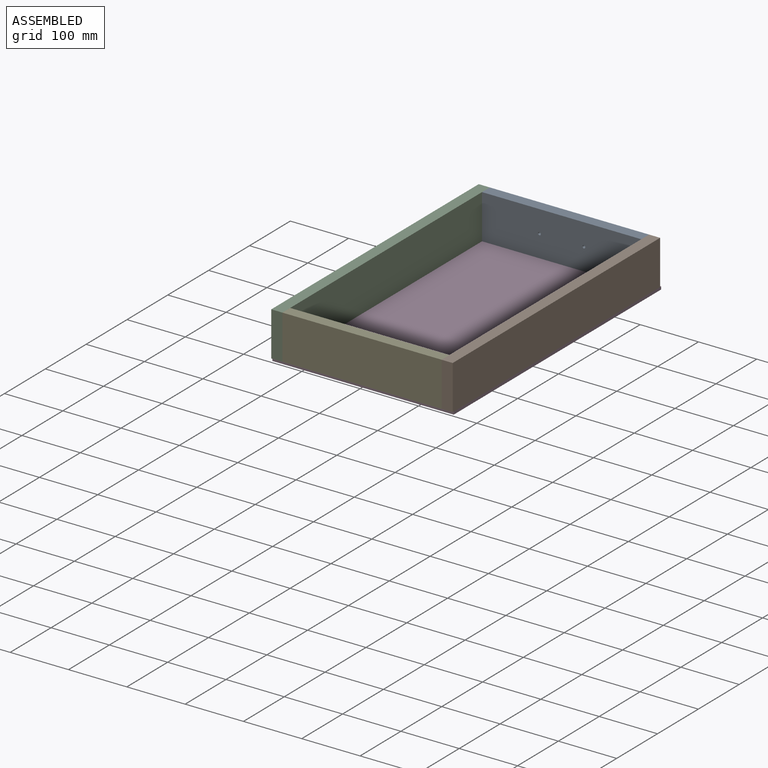
[diagram: assembled view]
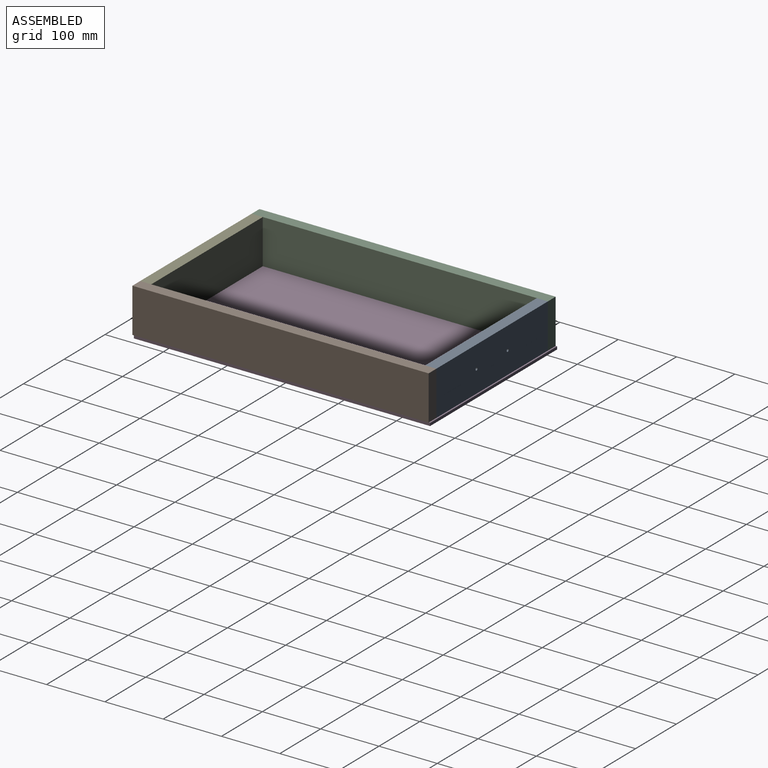
[diagram: assembled view, second angle]
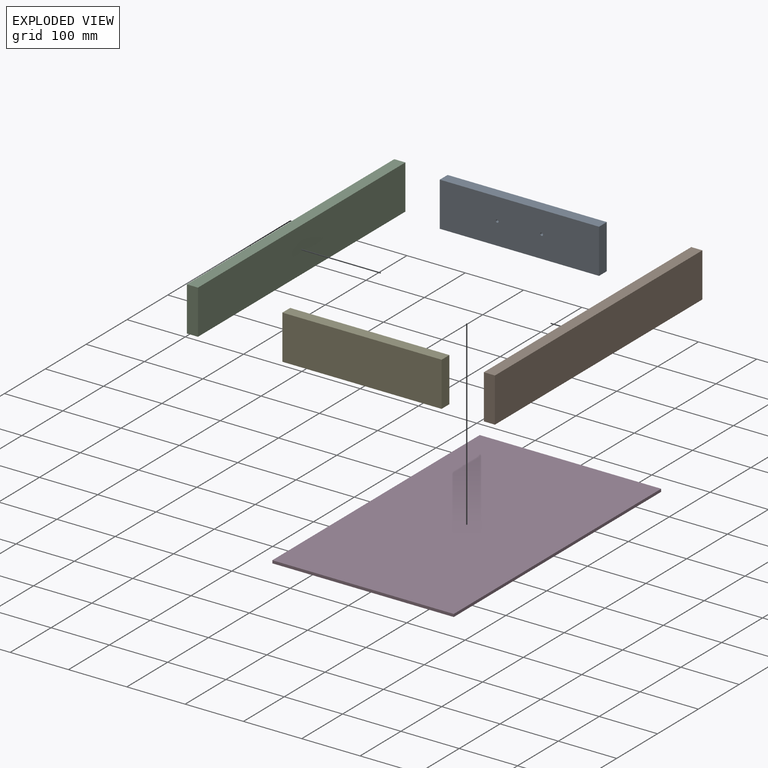
[diagram: exploded view]
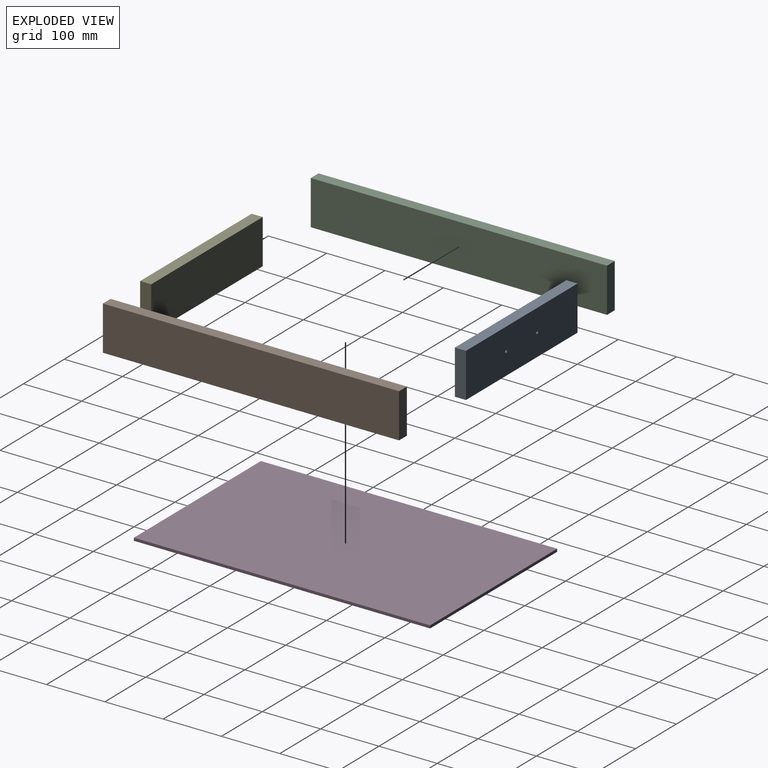
[diagram: exploded view, second angle]
ASSEMBLY  parts=5 mates=4
PART A: 8 faces, bbox 273.1x19.1x76.2 mm
  f0: plane 273.05x19.05mm, normal (0,0,1), area 5201.6mm2, adj f1,f5,f6,f7
  f1: plane 76.2x19.05mm, normal (-1,0,0), area 1451.6mm2, adj f0,f2,f6,f7
  f2: plane 273.05x19.05mm, normal (0,0,-1), area 5201.6mm2, adj f1,f5,f6,f7
  f3: cylinder r=2.39mm len=19.05mm, axis (0,1,0), area 285.8mm2, adj f6,f7
  f4: cylinder r=2.39mm len=19.05mm, axis (0,1,0), area 285.8mm2, adj f6,f7
  f5: plane 76.2x19.05mm, normal (1,0,0), area 1451.6mm2, adj f0,f2,f6,f7
  f6: plane 273.05x76.2mm, normal (0,-1,0), area 20770.6mm2, adj f0,f1,f2,f3,f4,f5
  f7: plane 273.05x76.2mm, normal (0,1,0), area 20770.6mm2, adj f0,f1,f2,f3,f4,f5
PART B: 6 faces, bbox 76.2x19.1x508 mm
  f0: plane 76.2x19.05mm, normal (0,0,-1), area 1451.6mm2, adj f1,f3,f4,f5
  f1: plane 508x19.05mm, normal (1,0,0), area 9677.4mm2, adj f0,f2,f4,f5
  f2: plane 76.2x19.05mm, normal (0,0,1), area 1451.6mm2, adj f1,f3,f4,f5
  f3: plane 508x19.05mm, normal (-1,0,0), area 9677.4mm2, adj f0,f2,f4,f5
  f4: plane 508x76.2mm, normal (0,-1,0), area 38709.6mm2, adj f0,f1,f2,f3
  f5: plane 508x76.2mm, normal (0,1,0), area 38709.6mm2, adj f0,f1,f2,f3
PART C: same geometry as B
PART D: 6 faces, bbox 311.2x4.8x508 mm
  f0: plane 311.15x4.78mm, normal (0,0,1), area 1485.8mm2, adj f1,f3,f4,f5
  f1: plane 508x4.78mm, normal (-1,0,0), area 2425.8mm2, adj f0,f2,f4,f5
  f2: plane 311.15x4.78mm, normal (0,0,-1), area 1485.8mm2, adj f1,f3,f4,f5
  f3: plane 508x4.78mm, normal (1,0,0), area 2425.8mm2, adj f0,f2,f4,f5
  f4: plane 508x311.15mm, normal (0,-1,0), area 158064.2mm2, adj f0,f1,f2,f3
  f5: plane 508x311.15mm, normal (0,1,0), area 158064.2mm2, adj f0,f1,f2,f3
PART E: 6 faces, bbox 273.1x19.1x76.2 mm
  f0: plane 273.05x19.05mm, normal (0,0,1), area 5201.6mm2, adj f1,f3,f4,f5
  f1: plane 76.2x19.05mm, normal (-1,0,0), area 1451.6mm2, adj f0,f2,f4,f5
  f2: plane 273.05x19.05mm, normal (0,0,-1), area 5201.6mm2, adj f1,f3,f4,f5
  f3: plane 76.2x19.05mm, normal (1,0,0), area 1451.6mm2, adj f0,f2,f4,f5
  f4: plane 273.05x76.2mm, normal (0,-1,0), area 20806.4mm2, adj f0,f1,f2,f3
  f5: plane 273.05x76.2mm, normal (0,1,0), area 20806.4mm2, adj f0,f1,f2,f3
PLACE A rot(axis=(-0.67,0.74,0.07),0deg) t=(274.25,543.13,124.4)mm
PLACE B rot(axis=(0.58,-0.58,0.58),120deg) t=(35.18,289.13,140.94)mm
PLACE C rot(axis=(-0.58,-0.58,-0.58),120deg) t=(-237.87,289.13,140.94)mm
PLACE D rot(axis=(1,0,0),90deg) t=(397.2,-88,102.84)mm
PLACE E t=(225.49,54.18,0.52)mm
MATE fastened A.f1 <-> C.f5  axis (-1,0,0) through (-237.87,543.13,102.84)mm
MATE fastened B.f2 <-> E.f4  axis (0,-1,0) through (35.18,35.13,102.84)mm
MATE fastened C.f5 <-> E.f1  axis (1,0,0) through (-237.87,35.13,179.04)mm
MATE fastened D.f5 <-> B.f3  axis (0,0,1) through (54.23,545.67,102.84)mm
